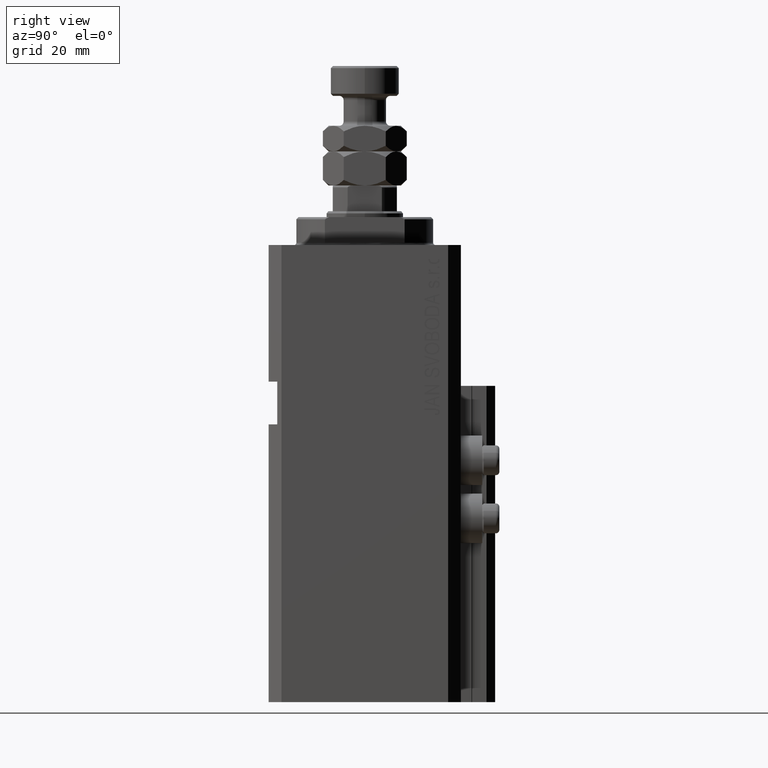
[diagram: clean part render]
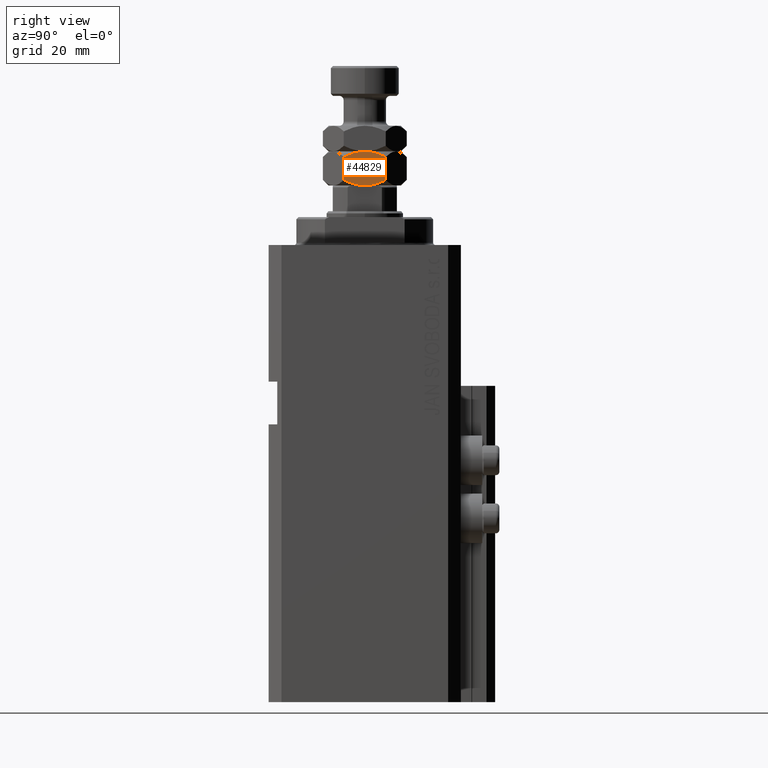
[diagram: same view with one face highlighted and labeled with its STEP entity id]
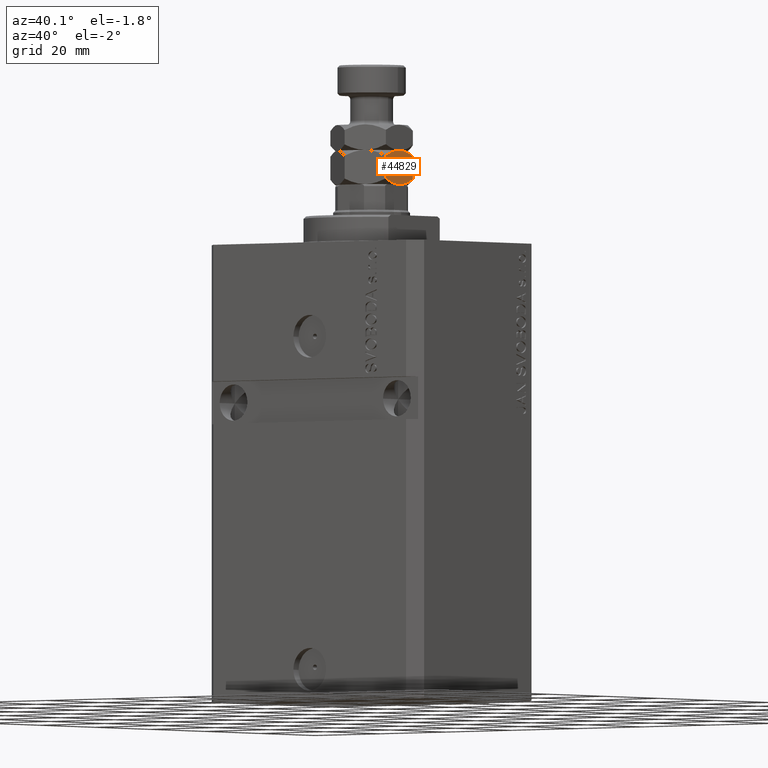
[diagram: same view with one face highlighted and labeled with its STEP entity id]
A machine part, right view. The second image highlights one B-rep face of the part: STEP entity #44829.
A second angle (auxiliary view) of the same face is appended — the face is thin or edge-on in the first view.
In plain terms, the highlighted planar face has unit normal (-1, 0, 0).
Its self-contained STEP definition (entity closure, byte-faithful):
#190 = B_SPLINE_CURVE_WITH_KNOTS ( 'NONE', 3,
 ( #10100, #24654, #13798, #43175, #9364, #5882, #28838, #39473 ),
 .UNSPECIFIED., .F., .F.,
 ( 4, 2, 2, 4 ),
 ( 0.02090421300422859452, 0.02218651579087455028, 0.02346881857752050951, 0.02603342415081242450 ),
 .UNSPECIFIED. ) ;
#272 = VERTEX_POINT ( 'NONE', #9585 ) ;
#1653 = VECTOR ( 'NONE', #26415, 1000.000000000000000 ) ;
#2806 = EDGE_CURVE ( 'NONE', #37690, #19300, #17796, .T. ) ;
#5293 = CARTESIAN_POINT ( 'NONE',  ( 8.500000000000001776, 4.907477288111821601, 8.000000000000000000 ) ) ;
#5882 = CARTESIAN_POINT ( 'NONE',  ( 8.500000000000001776, 3.353279637626476628, 7.396279653520239528 ) ) ;
#6481 = ORIENTED_EDGE ( 'NONE', *, *, #23204, .F. ) ;
#6780 = CARTESIAN_POINT ( 'NONE',  ( 8.500000000000003553, -2.120344129356182439, 7.748361753394901186 ) ) ;
#7518 = CARTESIAN_POINT ( 'NONE',  ( 8.500000000000005329, -3.352020480670829361, 0.6033098685796225435 ) ) ;
#8545 = CARTESIAN_POINT ( 'NONE',  ( 8.500000000000001776, 4.907477288111821601, 1.314954576223634763 ) ) ;
#9364 = CARTESIAN_POINT ( 'NONE',  ( 8.500000000000001776, 2.124043526558854644, 7.747436326571863319 ) ) ;
#9476 = VERTEX_POINT ( 'NONE', #36893 ) ;
#9585 = CARTESIAN_POINT ( 'NONE',  ( 8.500000000000001776, -4.907477288111821601, 6.685045423776368345 ) ) ;
#10100 = CARTESIAN_POINT ( 'NONE',  ( 8.499999999999996447, 0.000000000000000000, 8.000000000000000000 ) ) ;
#10248 = EDGE_CURVE ( 'NONE', #272, #11606, #15632, .T. ) ;
#10897 = LINE ( 'NONE', #44943, #1653 ) ;
#11606 = VERTEX_POINT ( 'NONE', #32728 ) ;
#12453 = DIRECTION ( 'NONE',  ( 0.000000000000000000, 0.000000000000000000, 1.000000000000000000 ) ) ;
#13049 = ORIENTED_EDGE ( 'NONE', *, *, #33060, .F. ) ;
#13798 = CARTESIAN_POINT ( 'NONE',  ( 8.500000000000003553, 0.8516617604573274436, 7.967848961132536267 ) ) ;
#14523 = CARTESIAN_POINT ( 'NONE',  ( 8.500000000000000000, 3.352131279506819883, 0.6031284304619856096 ) ) ;
#15632 = B_SPLINE_CURVE_WITH_KNOTS ( 'NONE', 3,
 ( #40602, #48486, #44792, #6780, #21843, #36898, #41100, #21123 ),
 .UNSPECIFIED., .F., .F.,
 ( 4, 2, 2, 4 ),
 ( 0.01578235603560546041, 0.01834328451991702746, 0.01962374876207281099, 0.02090421300422859452 ),
 .UNSPECIFIED. ) ;
#17796 = B_SPLINE_CURVE_WITH_KNOTS ( 'NONE', 3,
 ( #44619, #37454, #14523, #30052, #21918, #48086, #29322, #25857 ),
 .UNSPECIFIED., .F., .F.,
 ( 4, 2, 2, 4 ),
 ( 0.01599723978826465831, 0.01855901487057517660, 0.01983990241173043401, 0.02112078995288569488 ),
 .UNSPECIFIED. ) ;
#17884 = ORIENTED_EDGE ( 'NONE', *, *, #41975, .F. ) ;
#19300 = VERTEX_POINT ( 'NONE', #27702 ) ;
#21123 = CARTESIAN_POINT ( 'NONE',  ( 8.499999999999996447, 0.000000000000000000, 8.000000000000000000 ) ) ;
#21843 = CARTESIAN_POINT ( 'NONE',  ( 8.500000000000001776, -1.698611466173707063, 7.842106890605590408 ) ) ;
#21856 = CARTESIAN_POINT ( 'NONE',  ( 8.500000000000003553, -4.139332188297093040, 0.9308820263162719266 ) ) ;
#21918 = CARTESIAN_POINT ( 'NONE',  ( 8.500000000000001776, 1.697406582464703328, 0.1576838761756153839 ) ) ;
#22102 = CARTESIAN_POINT ( 'NONE',  ( 8.500000000000001776, -1.706008309425097957, 0.1592238233048459128 ) ) ;
#23204 = EDGE_CURVE ( 'NONE', #9476, #37690, #23809, .T. ) ;
#23809 = LINE ( 'NONE', #5293, #25081 ) ;
#24654 = CARTESIAN_POINT ( 'NONE',  ( 8.500000000000003553, 0.4256665909445817020, 8.000000000000000000 ) ) ;
#24782 = DIRECTION ( 'NONE',  ( -0.000000000000000000, -0.000000000000000000, -1.000000000000000000 ) ) ;
#25081 = VECTOR ( 'NONE', #24782, 1000.000000000000000 ) ;
#25857 = CARTESIAN_POINT ( 'NONE',  ( 8.500000000000001776, 0.000000000000000000, 0.000000000000000000 ) ) ;
#26415 = DIRECTION ( 'NONE',  ( -0.000000000000000000, -0.000000000000000000, -1.000000000000000000 ) ) ;
#26778 = B_SPLINE_CURVE_WITH_KNOTS ( 'NONE', 3,
 ( #48497, #33683, #33206, #22102, #41591, #7518, #21856, #37391 ),
 .UNSPECIFIED., .F., .F.,
 ( 4, 2, 2, 4 ),
 ( 0.02112078995288569488, 0.02240296911910873157, 0.02368514828533176825, 0.02624950661777783814 ),
 .UNSPECIFIED. ) ;
#27485 = CARTESIAN_POINT ( 'NONE',  ( 8.500000000000001776, -4.907477288111821601, 8.000000000000000000 ) ) ;
#27702 = CARTESIAN_POINT ( 'NONE',  ( 8.500000000000001776, 0.000000000000000000, 0.000000000000000000 ) ) ;
#28838 = CARTESIAN_POINT ( 'NONE',  ( 8.500000000000001776, 4.140161075469494634, 7.068703530097530496 ) ) ;
#28926 = EDGE_LOOP ( 'NONE', ( #34207, #6481, #13049, #45501, #30808, #17884 ) ) ;
#29322 = CARTESIAN_POINT ( 'NONE',  ( 8.500000000000001776, 0.4252082920830597690, -3.049318610115479988E-17 ) ) ;
#30052 = CARTESIAN_POINT ( 'NONE',  ( 8.500000000000003553, 2.119956228269632259, 0.2515287342491187572 ) ) ;
#30808 = ORIENTED_EDGE ( 'NONE', *, *, #33761, .T. ) ;
#32414 = VERTEX_POINT ( 'NONE', #40322 ) ;
#32728 = CARTESIAN_POINT ( 'NONE',  ( 8.499999999999996447, 0.000000000000000000, 8.000000000000000000 ) ) ;
#33060 = EDGE_CURVE ( 'NONE', #11606, #9476, #190, .T. ) ;
#33206 = CARTESIAN_POINT ( 'NONE',  ( 8.500000000000001776, -0.8519727303832901333, 0.03214805330870232347 ) ) ;
#33683 = CARTESIAN_POINT ( 'NONE',  ( 8.500000000000003553, -0.4256370648452550420, 3.162256336416055421E-17 ) ) ;
#33761 = EDGE_CURVE ( 'NONE', #272, #32414, #10897, .T. ) ;
#34166 = DIRECTION ( 'NONE',  ( -1.000000000000000000, 0.000000000000000000, 0.000000000000000000 ) ) ;
#34207 = ORIENTED_EDGE ( 'NONE', *, *, #2806, .F. ) ;
#34310 = AXIS2_PLACEMENT_3D ( 'NONE', #27485, #34166, #12453 ) ;
#36893 = CARTESIAN_POINT ( 'NONE',  ( 8.500000000000001776, 4.907477288111821601, 6.685045423776367457 ) ) ;
#36898 = CARTESIAN_POINT ( 'NONE',  ( 8.500000000000001776, -0.8497849549400450231, 7.967944758129792859 ) ) ;
#37391 = CARTESIAN_POINT ( 'NONE',  ( 8.500000000000001776, -4.907477288111817160, 1.314954576223629878 ) ) ;
#37454 = CARTESIAN_POINT ( 'NONE',  ( 8.500000000000001776, 4.139854994771645202, 0.9311434295535470085 ) ) ;
#37690 = VERTEX_POINT ( 'NONE', #8545 ) ;
#38121 = PLANE ( 'NONE',  #34310 ) ;
#39473 = CARTESIAN_POINT ( 'NONE',  ( 8.500000000000001776, 4.907477288111821601, 6.685045423776367457 ) ) ;
#40322 = CARTESIAN_POINT ( 'NONE',  ( 8.500000000000001776, -4.907477288111817160, 1.314954576223629878 ) ) ;
#40602 = CARTESIAN_POINT ( 'NONE',  ( 8.500000000000001776, -4.907477288111821601, 6.685045423776368345 ) ) ;
#41100 = CARTESIAN_POINT ( 'NONE',  ( 8.500000000000001776, -0.4250562772389715471, 8.000000000000001776 ) ) ;
#41591 = CARTESIAN_POINT ( 'NONE',  ( 8.500000000000001776, -2.123774520232884377, 0.2525122409469403029 ) ) ;
#41826 = FACE_OUTER_BOUND ( 'NONE', #28926, .T. ) ;
#41975 = EDGE_CURVE ( 'NONE', #19300, #32414, #26778, .T. ) ;
#43175 = CARTESIAN_POINT ( 'NONE',  ( 8.500000000000003553, 1.704290491844008049, 7.841080917550288021 ) ) ;
#44619 = CARTESIAN_POINT ( 'NONE',  ( 8.500000000000001776, 4.907477288111821601, 1.314954576223634763 ) ) ;
#44792 = CARTESIAN_POINT ( 'NONE',  ( 8.500000000000000000, -3.351438397892505083, 7.397066932847726761 ) ) ;
#44829 = ADVANCED_FACE ( 'NONE', ( #41826 ), #38121, .F. ) ;
#44943 = CARTESIAN_POINT ( 'NONE',  ( 8.500000000000001776, -4.907477288111821601, 8.000000000000000000 ) ) ;
#45501 = ORIENTED_EDGE ( 'NONE', *, *, #10248, .F. ) ;
#48086 = CARTESIAN_POINT ( 'NONE',  ( 8.500000000000001776, 0.8497195448779554239, 0.03207620093399844718 ) ) ;
#48486 = CARTESIAN_POINT ( 'NONE',  ( 8.500000000000001776, -4.139497883677781154, 7.069035125993385016 ) ) ;
#48497 = CARTESIAN_POINT ( 'NONE',  ( 8.500000000000001776, 0.000000000000000000, 0.000000000000000000 ) ) ;